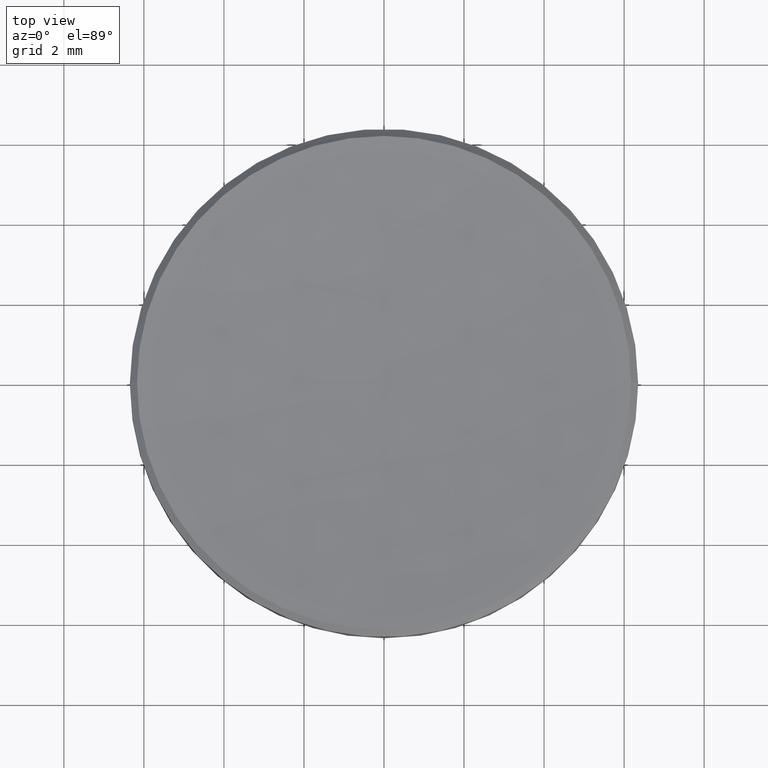
[diagram: clean part render]
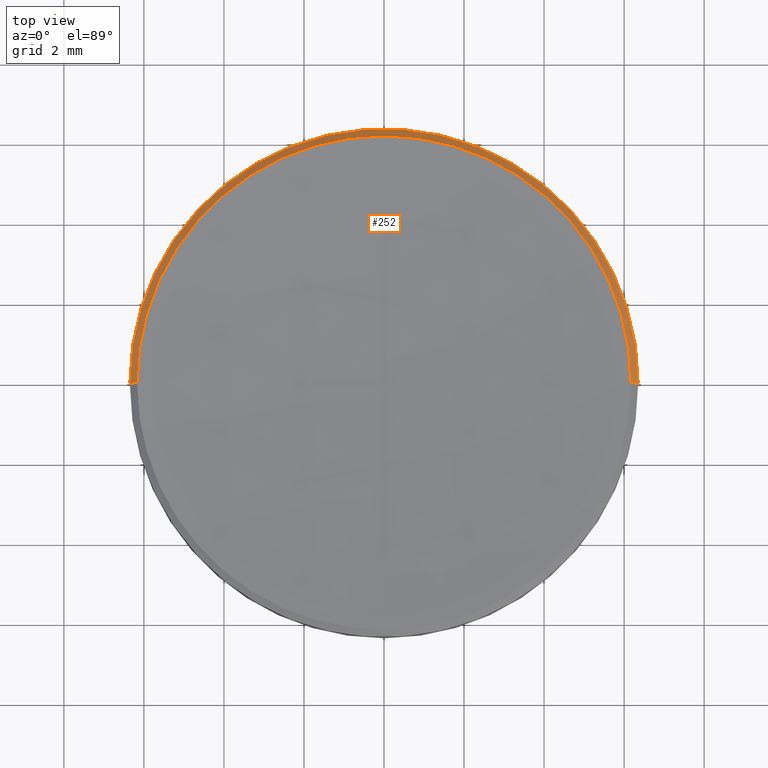
[diagram: same view with one face highlighted and labeled with its STEP entity id]
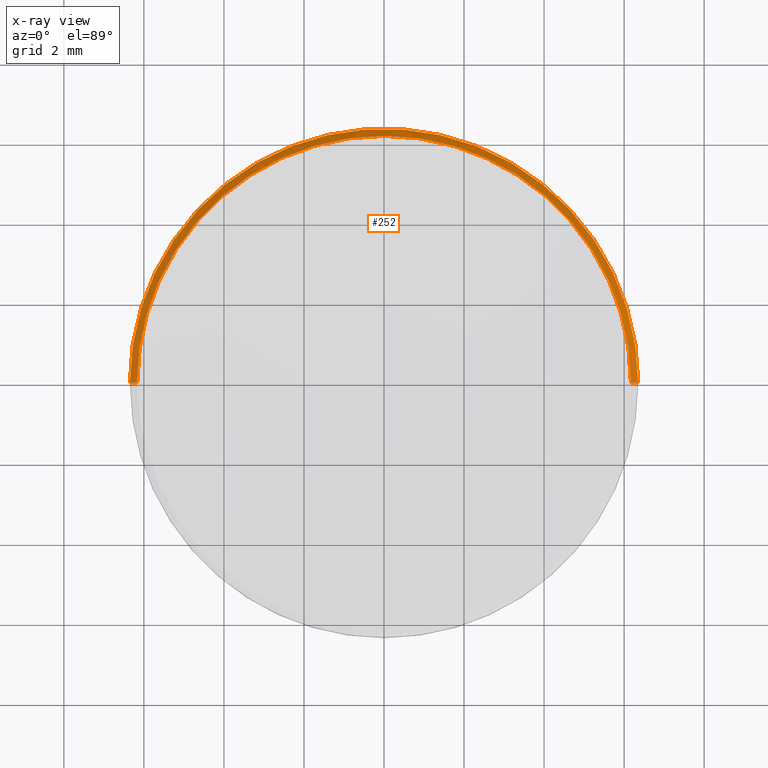
[diagram: x-ray of the same camera — body ghosted, the highlighted face saturated]
A machine part, top view. The second image highlights one B-rep face of the part: STEP entity #252.
The next image is the same camera in x-ray: the body ghosted, the highlighted face saturated — about 0% of this face is hidden behind the body in this view.
In plain terms, the highlighted conical surface has half-angle 45 deg.
Its self-contained STEP definition (entity closure, byte-faithful):
#4 = CARTESIAN_POINT ( 'NONE',  ( -6.349999999999999645, 0.000000000000000000, 5.800000000000006928 ) ) ;
#5 = DIRECTION ( 'NONE',  ( 1.000000000000000000, 0.000000000000000000, 0.000000000000000000 ) ) ;
#6 = ORIENTED_EDGE ( 'NONE', *, *, #22, .F. ) ;
#15 = CARTESIAN_POINT ( 'NONE',  ( -6.171335389634259094, 0.000000000000000000, 5.978664610365738596 ) ) ;
#22 = EDGE_CURVE ( 'NONE', #54, #209, #240, .T. ) ;
#33 = VERTEX_POINT ( 'NONE', #122 ) ;
#37 = VECTOR ( 'NONE', #130, 999.9999999999998863 ) ;
#46 = EDGE_CURVE ( 'NONE', #54, #33, #98, .T. ) ;
#51 = EDGE_CURVE ( 'NONE', #209, #243, #196, .T. ) ;
#54 = VERTEX_POINT ( 'NONE', #63 ) ;
#55 = AXIS2_PLACEMENT_3D ( 'NONE', #123, #214, #5 ) ;
#57 = CARTESIAN_POINT ( 'NONE',  ( 0.000000000000000000, 0.000000000000000000, 5.978664610365724386 ) ) ;
#63 = CARTESIAN_POINT ( 'NONE',  ( 6.171335389634259094, 7.667106652983034787E-16, 5.978664610365738596 ) ) ;
#90 = VERTEX_POINT ( 'NONE', #4 ) ;
#92 = ORIENTED_EDGE ( 'NONE', *, *, #199, .F. ) ;
#95 = AXIS2_PLACEMENT_3D ( 'NONE', #270, #205, #139 ) ;
#98 = LINE ( 'NONE', #210, #160 ) ;
#99 = EDGE_CURVE ( 'NONE', #90, #33, #136, .T. ) ;
#100 = CARTESIAN_POINT ( 'NONE',  ( 0.000000000000000000, 0.000000000000000000, 5.978664610365738596 ) ) ;
#119 = DIRECTION ( 'NONE',  ( 1.000000000000000000, 0.000000000000000000, 0.000000000000000000 ) ) ;
#120 = ORIENTED_EDGE ( 'NONE', *, *, #51, .F. ) ;
#121 = AXIS2_PLACEMENT_3D ( 'NONE', #100, #169, #119 ) ;
#122 = CARTESIAN_POINT ( 'NONE',  ( 6.349999999999999645, 7.776507174585692163E-16, 5.800000000000006928 ) ) ;
#123 = CARTESIAN_POINT ( 'NONE',  ( 0.000000000000000000, 0.000000000000000000, 5.978664610365738596 ) ) ;
#129 = CARTESIAN_POINT ( 'NONE',  ( 0.000000000000000000, 6.171335389634308832, 5.978664610365742149 ) ) ;
#130 = DIRECTION ( 'NONE',  ( -0.7071067811865716646, 0.000000000000000000, -0.7071067811865234809 ) ) ;
#136 = CIRCLE ( 'NONE', #95, 6.349999999999999645 ) ;
#139 = DIRECTION ( 'NONE',  ( 1.000000000000000000, 0.000000000000000000, 0.000000000000000000 ) ) ;
#140 = ORIENTED_EDGE ( 'NONE', *, *, #46, .T. ) ;
#149 = CARTESIAN_POINT ( 'NONE',  ( -6.171335389634268864, 0.000000000000000000, 5.978664610365724386 ) ) ;
#160 = VECTOR ( 'NONE', #187, 999.9999999999998863 ) ;
#169 = DIRECTION ( 'NONE',  ( -0.000000000000000000, -0.000000000000000000, 1.000000000000000000 ) ) ;
#173 = LINE ( 'NONE', #149, #37 ) ;
#176 = DIRECTION ( 'NONE',  ( -1.000000000000000000, 0.000000000000000000, 0.000000000000000000 ) ) ;
#187 = DIRECTION ( 'NONE',  ( 0.7071067811865716646, 8.659560562355227448E-17, -0.7071067811865234809 ) ) ;
#196 = CIRCLE ( 'NONE', #55, 6.171335389634259094 ) ;
#199 = EDGE_CURVE ( 'NONE', #243, #90, #173, .T. ) ;
#205 = DIRECTION ( 'NONE',  ( 0.000000000000000000, 0.000000000000000000, -1.000000000000000000 ) ) ;
#209 = VERTEX_POINT ( 'NONE', #129 ) ;
#210 = CARTESIAN_POINT ( 'NONE',  ( 6.171335389634268864, 7.557706131380392202E-16, 5.978664610365724386 ) ) ;
#212 = AXIS2_PLACEMENT_3D ( 'NONE', #57, #218, #176 ) ;
#214 = DIRECTION ( 'NONE',  ( -0.000000000000000000, -0.000000000000000000, 1.000000000000000000 ) ) ;
#218 = DIRECTION ( 'NONE',  ( 0.000000000000000000, 0.000000000000000000, -1.000000000000000000 ) ) ;
#222 = CONICAL_SURFACE ( 'NONE', #212, 6.171335389634268864, 0.7853981633974822518 ) ;
#228 = ORIENTED_EDGE ( 'NONE', *, *, #99, .F. ) ;
#239 = FACE_OUTER_BOUND ( 'NONE', #273, .T. ) ;
#240 = CIRCLE ( 'NONE', #121, 6.171335389634259094 ) ;
#243 = VERTEX_POINT ( 'NONE', #15 ) ;
#252 = ADVANCED_FACE ( 'NONE', ( #239 ), #222, .T. ) ;
#270 = CARTESIAN_POINT ( 'NONE',  ( 0.000000000000000000, 0.000000000000000000, 5.800000000000006928 ) ) ;
#273 = EDGE_LOOP ( 'NONE', ( #6, #140, #228, #92, #120 ) ) ;